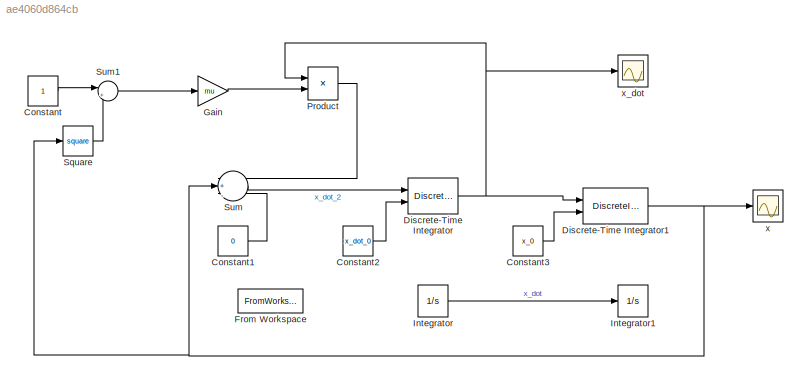
MODEL slx_ae4060d864cb
KIND model
CONFIG AbsTol = auto
CONFIG EnableMultiTasking = off
CONFIG FixedStep = auto
CONFIG MaxStep = auto
CONFIG MinStep = auto
CONFIG RelTol = 1e-3
CONFIG SampleTimeConstraint = Unconstrained
CONFIG SolverName = ode45
CONFIG StartTime = 0.0
CONFIG StopTime = 10.0
BLOCK [Constant] Constant
BLOCK [Constant] Constant1
  Value = 0
BLOCK [Constant] Constant2
  Value = x_dot_0
BLOCK [Constant] Constant3
  Value = x_0
BLOCK [DiscreteIntegrator] Discrete-Time Integrator
  ICPrevOutput = DiscIntNeverNeededParam
  ICPrevScaledInput = DiscIntNeverNeededParam
  InitialConditionSetting = Auto
  InitialConditionSource = external
  IntegratorMethod = Integration: Trapezoidal
  Ports = [2, 1]
  SampleTime = -1
BLOCK [DiscreteIntegrator] Discrete-Time Integrator1
  ICPrevOutput = DiscIntNeverNeededParam
  ICPrevScaledInput = DiscIntNeverNeededParam
  InitialConditionSetting = Auto
  InitialConditionSource = external
  IntegratorMethod = Integration: Trapezoidal
  Ports = [2, 1]
  SampleTime = -1
BLOCK [FromWorkspace] From Workspace
  Commented = on
  VariableName = ut
BLOCK [Gain] Gain
  Gain = mu
BLOCK [Integrator] Integrator
  Commented = on
  InitialCondition = 2
  Ports = [1, 1]
BLOCK [Integrator] Integrator1
  Commented = on
  InitialCondition = 2
  Ports = [1, 1]
BLOCK [Product] Product
  Ports = [2, 1]
BLOCK [Math] Square
  Operator = square
  Ports = [1, 1]
BLOCK [Sum] Sum
  Inputs = |+|-|+
  Ports = [3, 1]
BLOCK [Sum] Sum1
  Inputs = |+-
  Ports = [2, 1]
BLOCK [Scope] x
  Floating = off
  NumInputPorts = 1
  Ports = [1]
  ScopeSpecificationString = Simulink.scopes.TimeScopeBlockCfg('CurrentConfiguration', extmgr.ConfigurationSet(extmgr.Configuration('Core','General UI',true),extmgr.Configuration('Core','Source UI',true),extmgr.Configuration('Sources','WiredSimulink',true),extmgr.Configuration('Visuals','Time Domain',true,'SerializedDisplays',{struct('MinYLimReal','-3.08675','MaxYLimReal','3.09887','YLabelReal','','MinYLimMag','0.00000','MaxY...<+1400ch>
BLOCK [Scope] x_dot
  Floating = off
  NumInputPorts = 1
  Ports = [1]
  ScopeSpecificationString = Simulink.scopes.TimeScopeBlockCfg('CurrentConfiguration', extmgr.ConfigurationSet(extmgr.Configuration('Core','General UI',true),extmgr.Configuration('Core','Source UI',true),extmgr.Configuration('Sources','WiredSimulink',true,'DataLoggingVariableName','ScopeData1'),extmgr.Configuration('Visuals','Time Domain',true,'SerializedDisplays',{struct('MinYLimReal','-3.67616','MaxYLimReal','3.62901','YLab...<+1438ch>
LINE Constant1:1 -> Sum:3
LINE Constant2:1 -> Discrete-Time Integrator:2
LINE Constant3:1 -> Discrete-Time Integrator1:2
LINE Constant:1 -> Sum1:1
NET Discrete-Time Integrator1:1 -> Square:1, Sum:2, x:1
NET Discrete-Time Integrator:1 -> Discrete-Time Integrator1:1, Product:1, x_dot:1
LINE Gain:1 -> Product:2
LINE Integrator:1 -> Integrator1:1
LINE Product:1 -> Sum:1
LINE Square:1 -> Sum1:2
LINE Sum1:1 -> Gain:1
LINE Sum:1 -> Discrete-Time Integrator:1
note: NET lines group one-source signal fan-out (src -> all destinations, sorted); 1:1 wires keep LINE
